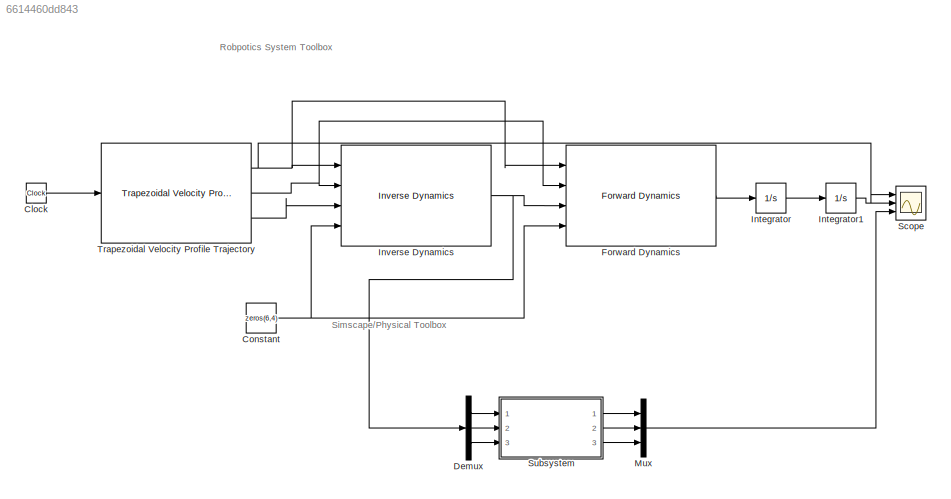
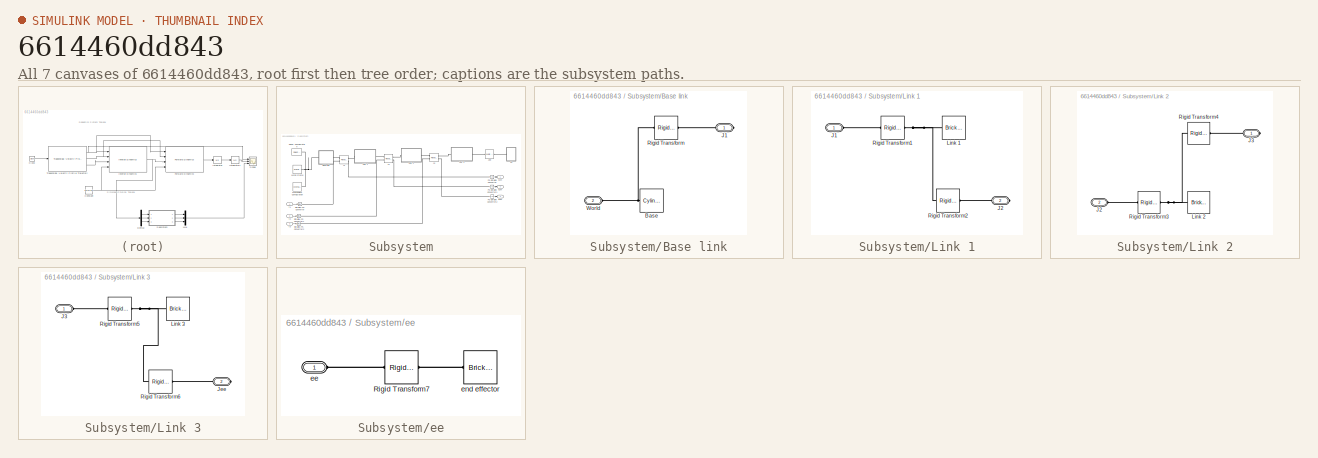
[diagram: thumbnail index - all 7 canvases of the model, root first then tree order]
MODEL slx_6614460dd843
KIND model
CONFIG AbsTol = auto
CONFIG EnableMultiTasking = off
CONFIG FixedStep = auto
CONFIG MaxStep = auto
CONFIG MinStep = auto
CONFIG RelTol = 1e-3
CONFIG SampleTimeConstraint = Unconstrained
CONFIG SolverName = VariableStepAuto
CONFIG StartTime = 0.0
CONFIG StopTime = 10.0
BLOCK [Clock] Clock
BLOCK [Constant] Constant
  Value = zeros(6,4)
BLOCK [Demux] Demux
  Outputs = 3
  Ports = [1, 3]
BLOCK [Reference] Forward Dynamics  REF=robotmaniplib/Forward Dynamics
  Ports = [4, 1]
  SourceBlock = robotmaniplib/Forward Dynamics
  SourceProductBaseCode = RO
  SourceType = Forward Dynamics
BLOCK [Integrator] Integrator
  Ports = [1, 1]
BLOCK [Integrator] Integrator1
  Ports = [1, 1]
BLOCK [Reference] Inverse Dynamics  REF=robotmaniplib/Inverse Dynamics
  Ports = [4, 1]
  SourceBlock = robotmaniplib/Inverse Dynamics
  SourceProductBaseCode = RO
  SourceType = Inverse Dynamics
BLOCK [Mux] Mux
  DisplayOption = bar
  Inputs = 3
  Ports = [3, 1]
BLOCK [Scope] Scope
  Floating = off
  NumInputPorts = 3
  Ports = [3]
  ScopeSpecificationString = Simulink.scopes.TimeScopeBlockCfg('CurrentConfiguration', extmgr.ConfigurationSet(extmgr.Configuration('Core','General UI',true),extmgr.Configuration('Core','Source UI',true),extmgr.Configuration('Sources','WiredSimulink',true),extmgr.Configuration('Visuals','Time Domain',true,'SerializedDisplays',{struct('MinYLimReal','-0.04375','MaxYLimReal','0.39375','YLabelReal','','MinYLimMag','0.00000','MaxY...<+2839ch>
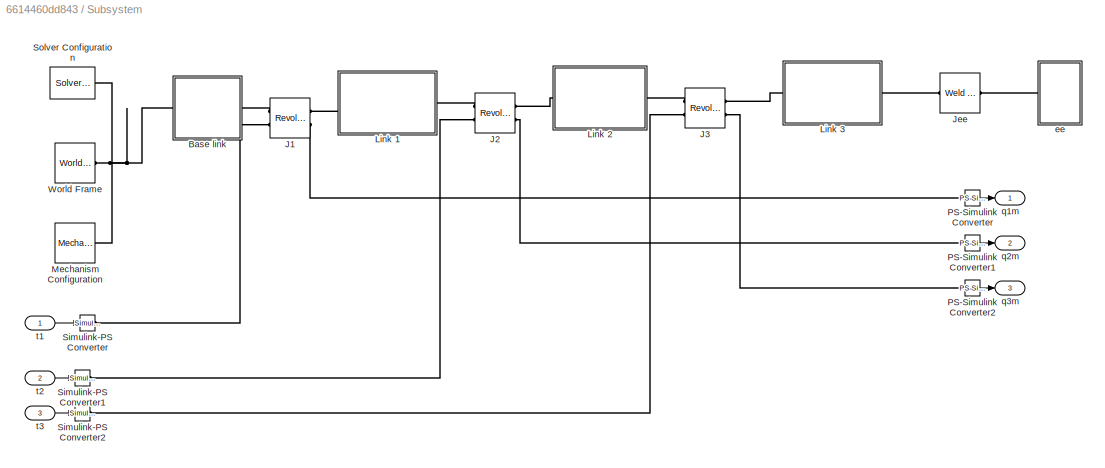
BLOCK [SubSystem] Subsystem
  Ports = [3, 3]
  RequestExecContextInheritance = off
BLOCK [SubSystem] Subsystem/Base link
  Ports = [0, 0, 0, 0, 0, 1, 1]
  RequestExecContextInheritance = off
BLOCK [Reference] Subsystem/Base link/Base  REF=sm_lib/Body Elements/Cylindrical Solid
  NameLocation = top
  Ports = [0, 0, 0, 0, 0, 0, 1]
  SourceBlock = sm_lib/Body Elements/Cylindrical Solid
  SourceProductBaseCode = MS
  SourceType = Cylindrical Solid
BLOCK [PMIOPort] Subsystem/Base link/J1
  Side = Right
BLOCK [Reference] Subsystem/Base link/Rigid Transform  REF=sm_lib/Frames and
Transforms/Rigid
Transform
  Ports = [0, 0, 0, 0, 0, 1, 1]
  SourceBlock = sm_lib/Frames and\nTransforms/Rigid\nTransform
  SourceProductBaseCode = MS
  SourceType = Rigid\nTransform
BLOCK [PMIOPort] Subsystem/Base link/World
  Port = 2
  Side = Left
BLOCK [Reference] Subsystem/J1  REF=sm_lib/Joints/Revolute Joint
  Ports = [0, 0, 0, 0, 0, 2, 2]
  SourceBlock = sm_lib/Joints/Revolute Joint
  SourceProductBaseCode = MS
  SourceType = Revolute Joint
BLOCK [Reference] Subsystem/J2  REF=sm_lib/Joints/Revolute Joint
  Ports = [0, 0, 0, 0, 0, 2, 2]
  SourceBlock = sm_lib/Joints/Revolute Joint
  SourceProductBaseCode = MS
  SourceType = Revolute Joint
BLOCK [Reference] Subsystem/J3  REF=sm_lib/Joints/Revolute Joint
  Ports = [0, 0, 0, 0, 0, 2, 2]
  SourceBlock = sm_lib/Joints/Revolute Joint
  SourceProductBaseCode = MS
  SourceType = Revolute Joint
BLOCK [Reference] Subsystem/Jee  REF=sm_lib/Joints/Weld Joint
  Ports = [0, 0, 0, 0, 0, 1, 1]
  SourceBlock = sm_lib/Joints/Weld Joint
  SourceProductBaseCode = MS
  SourceType = Weld Joint
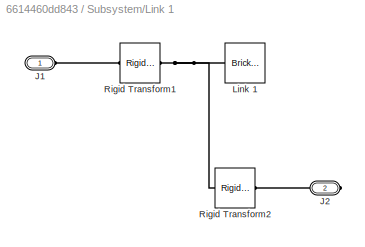
BLOCK [SubSystem] Subsystem/Link 1
  Ports = [0, 0, 0, 0, 0, 1, 1]
  RequestExecContextInheritance = off
BLOCK [PMIOPort] Subsystem/Link 1/J1
  Side = Left
BLOCK [PMIOPort] Subsystem/Link 1/J2
  Port = 2
  Side = Right
BLOCK [Reference] Subsystem/Link 1/Link 1  REF=sm_lib/Body Elements/Brick Solid
  NameLocation = top
  Ports = [0, 0, 0, 0, 0, 0, 1]
  SourceBlock = sm_lib/Body Elements/Brick Solid
  SourceProductBaseCode = MS
  SourceType = Brick Solid
BLOCK [Reference] Subsystem/Link 1/Rigid Transform1  REF=sm_lib/Frames and
Transforms/Rigid
Transform
  Ports = [0, 0, 0, 0, 0, 1, 1]
  SourceBlock = sm_lib/Frames and\nTransforms/Rigid\nTransform
  SourceProductBaseCode = MS
  SourceType = Rigid\nTransform
BLOCK [Reference] Subsystem/Link 1/Rigid Transform2  REF=sm_lib/Frames and
Transforms/Rigid
Transform
  Ports = [0, 0, 0, 0, 0, 1, 1]
  SourceBlock = sm_lib/Frames and\nTransforms/Rigid\nTransform
  SourceProductBaseCode = MS
  SourceType = Rigid\nTransform
BLOCK [SubSystem] Subsystem/Link 2
  Ports = [0, 0, 0, 0, 0, 1, 1]
  RequestExecContextInheritance = off
BLOCK [PMIOPort] Subsystem/Link 2/J2
  Port = 2
  Side = Left
BLOCK [PMIOPort] Subsystem/Link 2/J3
  Side = Right
BLOCK [Reference] Subsystem/Link 2/Link 2  REF=sm_lib/Body Elements/Brick Solid
  NameLocation = top
  Ports = [0, 0, 0, 0, 0, 0, 1]
  SourceBlock = sm_lib/Body Elements/Brick Solid
  SourceProductBaseCode = MS
  SourceType = Brick Solid
BLOCK [Reference] Subsystem/Link 2/Rigid Transform3  REF=sm_lib/Frames and
Transforms/Rigid
Transform
  Ports = [0, 0, 0, 0, 0, 1, 1]
  SourceBlock = sm_lib/Frames and\nTransforms/Rigid\nTransform
  SourceProductBaseCode = MS
  SourceType = Rigid\nTransform
BLOCK [Reference] Subsystem/Link 2/Rigid Transform4  REF=sm_lib/Frames and
Transforms/Rigid
Transform
  Ports = [0, 0, 0, 0, 0, 1, 1]
  SourceBlock = sm_lib/Frames and\nTransforms/Rigid\nTransform
  SourceProductBaseCode = MS
  SourceType = Rigid\nTransform
BLOCK [SubSystem] Subsystem/Link 3
  Ports = [0, 0, 0, 0, 0, 1, 1]
  RequestExecContextInheritance = off
BLOCK [PMIOPort] Subsystem/Link 3/J3
  Side = Left
BLOCK [PMIOPort] Subsystem/Link 3/Jee
  Port = 2
  Side = Right
BLOCK [Reference] Subsystem/Link 3/Link 3  REF=sm_lib/Body Elements/Brick Solid
  NameLocation = top
  Ports = [0, 0, 0, 0, 0, 0, 1]
  SourceBlock = sm_lib/Body Elements/Brick Solid
  SourceProductBaseCode = MS
  SourceType = Brick Solid
BLOCK [Reference] Subsystem/Link 3/Rigid Transform5  REF=sm_lib/Frames and
Transforms/Rigid
Transform
  Ports = [0, 0, 0, 0, 0, 1, 1]
  SourceBlock = sm_lib/Frames and\nTransforms/Rigid\nTransform
  SourceProductBaseCode = MS
  SourceType = Rigid\nTransform
BLOCK [Reference] Subsystem/Link 3/Rigid Transform6  REF=sm_lib/Frames and
Transforms/Rigid
Transform
  Ports = [0, 0, 0, 0, 0, 1, 1]
  SourceBlock = sm_lib/Frames and\nTransforms/Rigid\nTransform
  SourceProductBaseCode = MS
  SourceType = Rigid\nTransform
BLOCK [Reference] Subsystem/Mechanism Configuration  REF=sm_lib/Utilities/Mechanism
Configuration
  Ports = [0, 0, 0, 0, 0, 0, 1]
  SourceBlock = sm_lib/Utilities/Mechanism\nConfiguration
  SourceProductBaseCode = MS
  SourceType = Mechanism\nConfiguration
BLOCK [Reference] Subsystem/PS-Simulink Converter  REF=nesl_utility/PS-Simulink
Converter
  Ports = [0, 1, 0, 0, 0, 1]
  SourceBlock = nesl_utility/PS-Simulink\nConverter
  SourceProductBaseCode = PW,SS
  SourceType = PS-Simulink\nConverter
BLOCK [Reference] Subsystem/PS-Simulink Converter1  REF=nesl_utility/PS-Simulink
Converter
  Ports = [0, 1, 0, 0, 0, 1]
  SourceBlock = nesl_utility/PS-Simulink\nConverter
  SourceProductBaseCode = PW,SS
  SourceType = PS-Simulink\nConverter
BLOCK [Reference] Subsystem/PS-Simulink Converter2  REF=nesl_utility/PS-Simulink
Converter
  Ports = [0, 1, 0, 0, 0, 1]
  SourceBlock = nesl_utility/PS-Simulink\nConverter
  SourceProductBaseCode = PW,SS
  SourceType = PS-Simulink\nConverter
BLOCK [Reference] Subsystem/Simulink-PS Converter  REF=nesl_utility/Simulink-PS
Converter
  Ports = [1, 0, 0, 0, 0, 0, 1]
  SourceBlock = nesl_utility/Simulink-PS\nConverter
  SourceProductBaseCode = PW,SS
  SourceType = Simulink-PS\nConverter
BLOCK [Reference] Subsystem/Simulink-PS Converter1  REF=nesl_utility/Simulink-PS
Converter
  Ports = [1, 0, 0, 0, 0, 0, 1]
  SourceBlock = nesl_utility/Simulink-PS\nConverter
  SourceProductBaseCode = PW,SS
  SourceType = Simulink-PS\nConverter
BLOCK [Reference] Subsystem/Simulink-PS Converter2  REF=nesl_utility/Simulink-PS
Converter
  Ports = [1, 0, 0, 0, 0, 0, 1]
  SourceBlock = nesl_utility/Simulink-PS\nConverter
  SourceProductBaseCode = PW,SS
  SourceType = Simulink-PS\nConverter
BLOCK [Reference] Subsystem/Solver Configuration  REF=nesl_utility/Solver
Configuration
  Ports = [0, 0, 0, 0, 0, 0, 1]
  SourceBlock = nesl_utility/Solver\nConfiguration
  SourceProductBaseCode = PW,SS
  SourceType = Solver\nConfiguration
BLOCK [Reference] Subsystem/World Frame  REF=sm_lib/Frames and
Transforms/World Frame
  Ports = [0, 0, 0, 0, 0, 0, 1]
  SourceBlock = sm_lib/Frames and\nTransforms/World Frame
  SourceProductBaseCode = MS
  SourceType = World Frame
BLOCK [SubSystem] Subsystem/ee
  Ports = [0, 0, 0, 0, 0, 1]
  RequestExecContextInheritance = off
BLOCK [Reference] Subsystem/ee/Rigid Transform7  REF=sm_lib/Frames and
Transforms/Rigid
Transform
  Ports = [0, 0, 0, 0, 0, 1, 1]
  SourceBlock = sm_lib/Frames and\nTransforms/Rigid\nTransform
  SourceProductBaseCode = MS
  SourceType = Rigid\nTransform
BLOCK [PMIOPort] Subsystem/ee/ee
  Side = Left
BLOCK [Reference] Subsystem/ee/end effector  REF=sm_lib/Body Elements/Brick Solid
  NameLocation = top
  Ports = [0, 0, 0, 0, 0, 0, 1]
  SourceBlock = sm_lib/Body Elements/Brick Solid
  SourceProductBaseCode = MS
  SourceType = Brick Solid
BLOCK [Outport] Subsystem/q1m
BLOCK [Outport] Subsystem/q2m
  Port = 2
BLOCK [Outport] Subsystem/q3m
  Port = 3
BLOCK [Inport] Subsystem/t1
BLOCK [Inport] Subsystem/t2
  Port = 2
BLOCK [Inport] Subsystem/t3
  Port = 3
BLOCK [Reference] Trapezoidal Velocity Profile Trajectory  REF=robotcorelib/Trapezoidal Velocity Profile Trajectory
  Ports = [1, 3]
  SourceBlock = robotcorelib/Trapezoidal Velocity Profile Trajectory
  SourceProductBaseCode = NV,RO,RR,UV
  SourceType = robotics.slcore.internal.block.TrapVelTrajSys
ANNOTATION (root): Robpotics System Toolbox
ANNOTATION (root): Simscape/Physical Toolbox
LINE Clock:1 -> Trapezoidal Velocity Profile Trajectory:1
NET Constant:1 -> Forward Dynamics:4, Inverse Dynamics:4
LINE Demux:1 -> Subsystem:1
LINE Demux:2 -> Subsystem:2
LINE Demux:3 -> Subsystem:3
LINE Forward Dynamics:1 -> Integrator:1
LINE Integrator1:1 -> Scope:2
LINE Integrator:1 -> Integrator1:1
NET Inverse Dynamics:1 -> Demux:1, Forward Dynamics:3
LINE Mux:1 -> Scope:3
LINE Subsystem/PS-Simulink Converter1:1 -> Subsystem/q2m:1
LINE Subsystem/PS-Simulink Converter2:1 -> Subsystem/q3m:1
LINE Subsystem/PS-Simulink Converter:1 -> Subsystem/q1m:1
LINE Subsystem/t1:1 -> Subsystem/Simulink-PS Converter:1
LINE Subsystem/t2:1 -> Subsystem/Simulink-PS Converter1:1
LINE Subsystem/t3:1 -> Subsystem/Simulink-PS Converter2:1
LINE Subsystem:1 -> Mux:1
LINE Subsystem:2 -> Mux:2
LINE Subsystem:3 -> Mux:3
NET Trapezoidal Velocity Profile Trajectory:1 -> Forward Dynamics:1, Inverse Dynamics:1, Scope:1
NET Trapezoidal Velocity Profile Trajectory:2 -> Forward Dynamics:2, Inverse Dynamics:2
LINE Trapezoidal Velocity Profile Trajectory:3 -> Inverse Dynamics:3
PNET net1: Subsystem/Base link/Base:RConn1 -- Subsystem/Base link/Rigid Transform:LConn1 -- Subsystem/Base link/World:RConn1
PLINE Subsystem/Base link/J1:RConn1 -- Subsystem/Base link/Rigid Transform:RConn1
PNET net2: Subsystem/Base link:LConn1 -- Subsystem/Mechanism Configuration:RConn1 -- Subsystem/Solver Configuration:RConn1 -- Subsystem/World Frame:RConn1
PLINE Subsystem/Base link:RConn1 -- Subsystem/J1:LConn1
PLINE Subsystem/J1:LConn2 -- Subsystem/Simulink-PS Converter:RConn1
PLINE Subsystem/J1:RConn1 -- Subsystem/Link 1:LConn1
PLINE Subsystem/J1:RConn2 -- Subsystem/PS-Simulink Converter:LConn1
PLINE Subsystem/J2:LConn1 -- Subsystem/Link 1:RConn1
PLINE Subsystem/J2:LConn2 -- Subsystem/Simulink-PS Converter1:RConn1
PLINE Subsystem/J2:RConn1 -- Subsystem/Link 2:LConn1
PLINE Subsystem/J2:RConn2 -- Subsystem/PS-Simulink Converter1:LConn1
PLINE Subsystem/J3:LConn1 -- Subsystem/Link 2:RConn1
PLINE Subsystem/J3:LConn2 -- Subsystem/Simulink-PS Converter2:RConn1
PLINE Subsystem/J3:RConn1 -- Subsystem/Link 3:LConn1
PLINE Subsystem/J3:RConn2 -- Subsystem/PS-Simulink Converter2:LConn1
PLINE Subsystem/Jee:LConn1 -- Subsystem/Link 3:RConn1
PLINE Subsystem/Jee:RConn1 -- Subsystem/ee:LConn1
PLINE Subsystem/Link 1/J1:RConn1 -- Subsystem/Link 1/Rigid Transform1:LConn1
PLINE Subsystem/Link 1/J2:RConn1 -- Subsystem/Link 1/Rigid Transform2:RConn1
PNET net3: Subsystem/Link 1/Link 1:RConn1 -- Subsystem/Link 1/Rigid Transform1:RConn1 -- Subsystem/Link 1/Rigid Transform2:LConn1
PLINE Subsystem/Link 2/J2:RConn1 -- Subsystem/Link 2/Rigid Transform3:LConn1
PLINE Subsystem/Link 2/J3:RConn1 -- Subsystem/Link 2/Rigid Transform4:RConn1
PNET net4: Subsystem/Link 2/Link 2:RConn1 -- Subsystem/Link 2/Rigid Transform3:RConn1 -- Subsystem/Link 2/Rigid Transform4:LConn1
PLINE Subsystem/Link 3/J3:RConn1 -- Subsystem/Link 3/Rigid Transform5:LConn1
PLINE Subsystem/Link 3/Jee:RConn1 -- Subsystem/Link 3/Rigid Transform6:RConn1
PNET net5: Subsystem/Link 3/Link 3:RConn1 -- Subsystem/Link 3/Rigid Transform5:RConn1 -- Subsystem/Link 3/Rigid Transform6:LConn1
PLINE Subsystem/ee/Rigid Transform7:LConn1 -- Subsystem/ee/ee:RConn1
PLINE Subsystem/ee/Rigid Transform7:RConn1 -- Subsystem/ee/end effector:RConn1
note: NET lines group one-source signal fan-out (src -> all destinations, sorted); 1:1 wires keep LINE; PNET lines group multi-terminal physical nets as a canonical sorted terminal list (undirected conserving connections); 2-terminal nets keep the pairwise PLINE form
